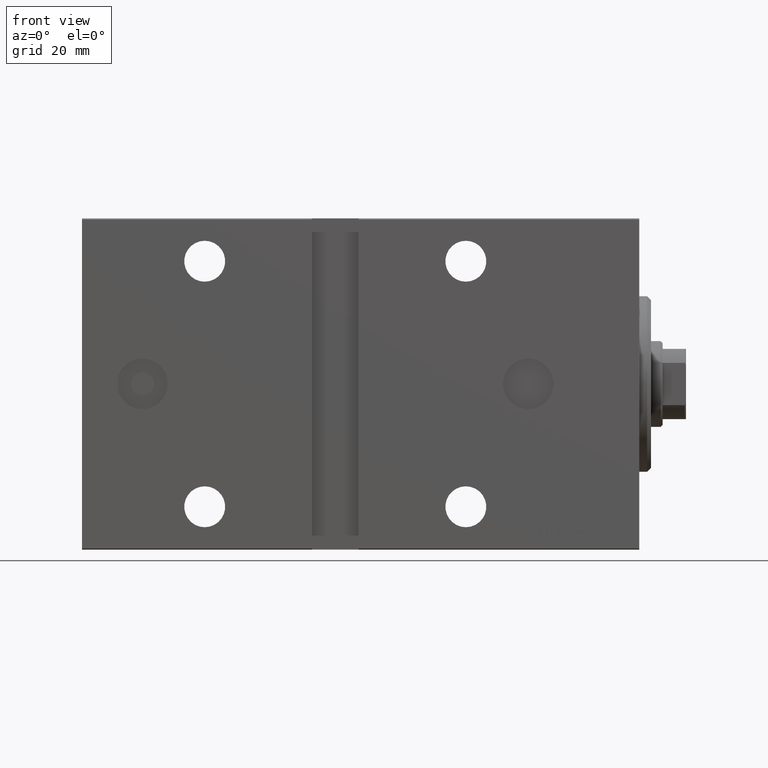
[diagram: clean part render]
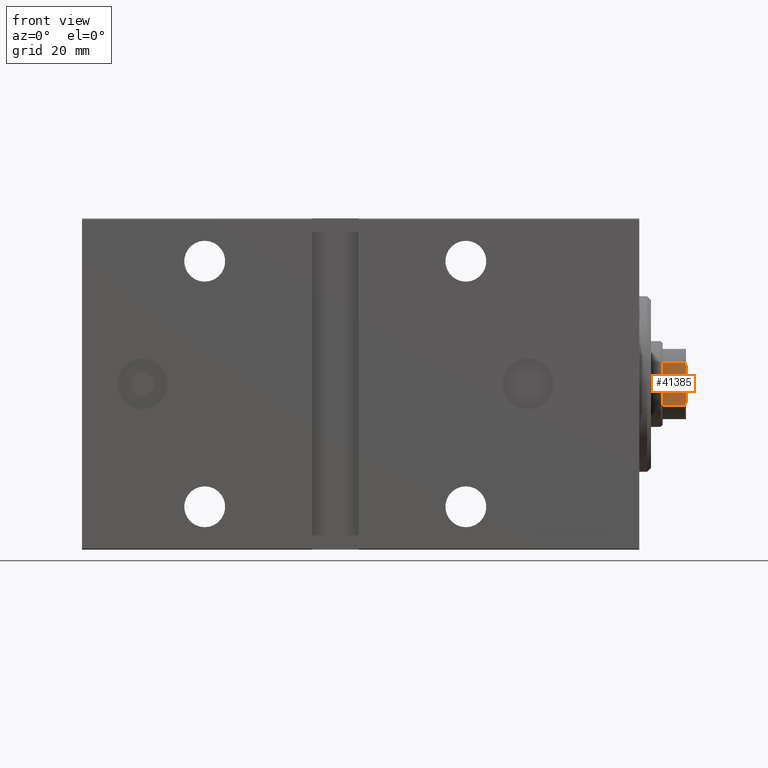
[diagram: same view with one face highlighted and labeled with its STEP entity id]
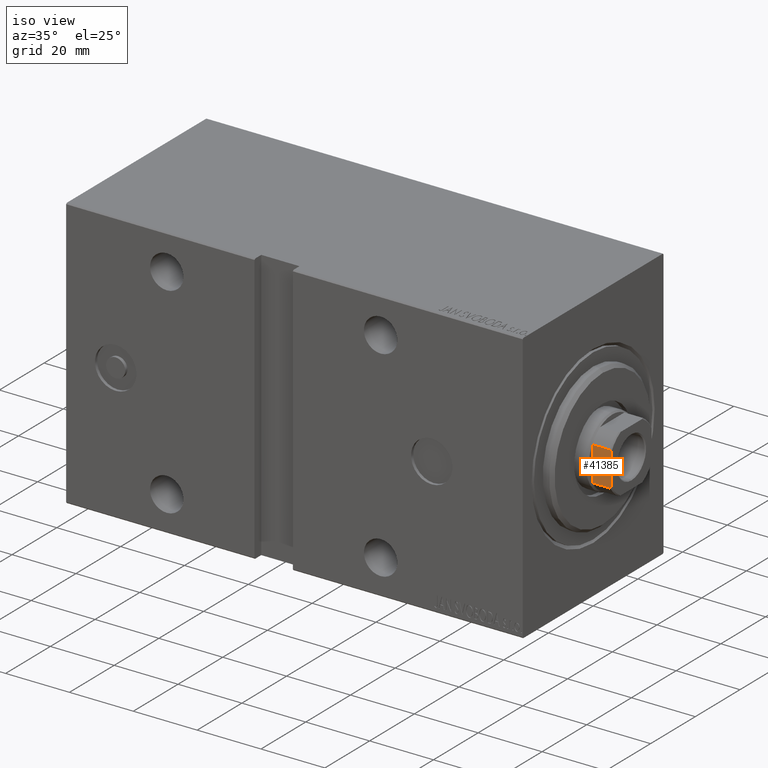
[diagram: same view with one face highlighted and labeled with its STEP entity id]
A machine part, front view. The second image highlights one B-rep face of the part: STEP entity #41385.
A second angle (iso view) of the same face is appended — the face is thin or edge-on in the first view.
In plain terms, the highlighted planar face has unit normal (0, 1, 0).
Its self-contained STEP definition (entity closure, byte-faithful):
#88 = CARTESIAN_POINT ( 'NONE',  ( -8.999999999999998224, -9.000000000000001776, 143.0000000000000284 ) ) ;
#413 = LINE ( 'NONE', #17100, #12630 ) ;
#560 = EDGE_CURVE ( 'NONE', #42306, #31789, #413, .T. ) ;
#937 = CARTESIAN_POINT ( 'NONE',  ( -4.799999999999995381, -9.000000000000001776, 143.0000000000000284 ) ) ;
#1351 = CARTESIAN_POINT ( 'NONE',  ( -5.207299490555475252, -9.000000000000001776, 142.8035449543006905 ) ) ;
#2398 = VECTOR ( 'NONE', #31808, 1000.000000000000000 ) ;
#2970 = CARTESIAN_POINT ( 'NONE',  ( -5.408326913195988794, -8.999999999999998224, -0.001000000000001000089 ) ) ;
#3157 = EDGE_CURVE ( 'NONE', #14443, #6310, #3605, .T. ) ;
#3605 = B_SPLINE_CURVE_WITH_KNOTS ( 'NONE', 3,
 ( #937, #40628, #1351, #14579 ),
 .UNSPECIFIED., .F., .F.,
 ( 4, 4 ),
 ( 0.000000000000000000, 0.0006782784334759318391 ),
 .UNSPECIFIED. ) ;
#6310 = VERTEX_POINT ( 'NONE', #27734 ) ;
#6607 = DIRECTION ( 'NONE',  ( 0.000000000000000000, -0.000000000000000000, 1.000000000000000000 ) ) ;
#6887 = ORIENTED_EDGE ( 'NONE', *, *, #560, .T. ) ;
#7512 = EDGE_CURVE ( 'NONE', #14051, #29813, #14768, .T. ) ;
#8728 = LINE ( 'NONE', #41691, #20334 ) ;
#10697 = CARTESIAN_POINT ( 'NONE',  ( 4.800000000000017586, -9.000000000000001776, 143.0000000000000284 ) ) ;
#12630 = VECTOR ( 'NONE', #20977, 1000.000000000000000 ) ;
#14051 = VERTEX_POINT ( 'NONE', #36504 ) ;
#14443 = VERTEX_POINT ( 'NONE', #25632 ) ;
#14579 = CARTESIAN_POINT ( 'NONE',  ( -5.408326913195988794, -8.999999999999998224, 142.7000000000000171 ) ) ;
#14768 = B_SPLINE_CURVE_WITH_KNOTS ( 'NONE', 3,
 ( #19747, #16285, #29504, #23410 ),
 .UNSPECIFIED., .F., .F.,
 ( 4, 4 ),
 ( 0.000000000000000000, 0.0006782784334759100467 ),
 .UNSPECIFIED. ) ;
#16185 = ORIENTED_EDGE ( 'NONE', *, *, #21612, .T. ) ;
#16285 = CARTESIAN_POINT ( 'NONE',  ( 5.207299490555480581, -8.999999999999998224, 142.8035449543006905 ) ) ;
#17100 = CARTESIAN_POINT ( 'NONE',  ( -8.999999999999998224, -9.000000000000001776, 137.0000000000000000 ) ) ;
#19203 = CARTESIAN_POINT ( 'NONE',  ( 5.408326913195988794, -8.999999999999998224, -0.001000000000001000089 ) ) ;
#19747 = CARTESIAN_POINT ( 'NONE',  ( 5.408326913195988794, -8.999999999999998224, 142.7000000000000171 ) ) ;
#20334 = VECTOR ( 'NONE', #38852, 1000.000000000000000 ) ;
#20818 = EDGE_LOOP ( 'NONE', ( #16185, #30824, #41878, #39750, #24557, #6887 ) ) ;
#20977 = DIRECTION ( 'NONE',  ( 1.000000000000000000, 0.000000000000000000, 0.000000000000000000 ) ) ;
#21612 = EDGE_CURVE ( 'NONE', #31789, #14051, #39578, .T. ) ;
#22697 = LINE ( 'NONE', #2970, #2398 ) ;
#23410 = CARTESIAN_POINT ( 'NONE',  ( 4.800000000000017586, -9.000000000000001776, 143.0000000000000284 ) ) ;
#24557 = ORIENTED_EDGE ( 'NONE', *, *, #40196, .F. ) ;
#25452 = EDGE_CURVE ( 'NONE', #14443, #29813, #8728, .T. ) ;
#25632 = CARTESIAN_POINT ( 'NONE',  ( -4.799999999999995381, -9.000000000000001776, 143.0000000000000284 ) ) ;
#27292 = AXIS2_PLACEMENT_3D ( 'NONE', #88, #42827, #6607 ) ;
#27734 = CARTESIAN_POINT ( 'NONE',  ( -5.408326913195988794, -8.999999999999998224, 142.7000000000000171 ) ) ;
#29504 = CARTESIAN_POINT ( 'NONE',  ( 5.004607318780318614, -9.000000000000001776, 142.9037142029269489 ) ) ;
#29813 = VERTEX_POINT ( 'NONE', #10697 ) ;
#30824 = ORIENTED_EDGE ( 'NONE', *, *, #7512, .T. ) ;
#31789 = VERTEX_POINT ( 'NONE', #38534 ) ;
#31808 = DIRECTION ( 'NONE',  ( -0.000000000000000000, -0.000000000000000000, 1.000000000000000000 ) ) ;
#35568 = VECTOR ( 'NONE', #36121, 1000.000000000000000 ) ;
#36121 = DIRECTION ( 'NONE',  ( -0.000000000000000000, -0.000000000000000000, 1.000000000000000000 ) ) ;
#36311 = PLANE ( 'NONE',  #27292 ) ;
#36504 = CARTESIAN_POINT ( 'NONE',  ( 5.408326913195988794, -8.999999999999998224, 142.7000000000000171 ) ) ;
#38534 = CARTESIAN_POINT ( 'NONE',  ( 5.408326913195988794, -8.999999999999998224, 136.9999999999999716 ) ) ;
#38852 = DIRECTION ( 'NONE',  ( 1.000000000000000000, 0.000000000000000000, 0.000000000000000000 ) ) ;
#39300 = CARTESIAN_POINT ( 'NONE',  ( -5.408326913195988794, -8.999999999999998224, 136.9999999999999716 ) ) ;
#39578 = LINE ( 'NONE', #19203, #35568 ) ;
#39750 = ORIENTED_EDGE ( 'NONE', *, *, #3157, .T. ) ;
#39991 = FACE_OUTER_BOUND ( 'NONE', #20818, .T. ) ;
#40196 = EDGE_CURVE ( 'NONE', #42306, #6310, #22697, .T. ) ;
#40628 = CARTESIAN_POINT ( 'NONE',  ( -5.004607318780298186, -9.000000000000001776, 142.9037142029269489 ) ) ;
#41385 = ADVANCED_FACE ( 'NONE', ( #39991 ), #36311, .F. ) ;
#41691 = CARTESIAN_POINT ( 'NONE',  ( -8.999999999999998224, -9.000000000000001776, 143.0000000000000284 ) ) ;
#41878 = ORIENTED_EDGE ( 'NONE', *, *, #25452, .F. ) ;
#42306 = VERTEX_POINT ( 'NONE', #39300 ) ;
#42827 = DIRECTION ( 'NONE',  ( 0.000000000000000000, 1.000000000000000000, 0.000000000000000000 ) ) ;